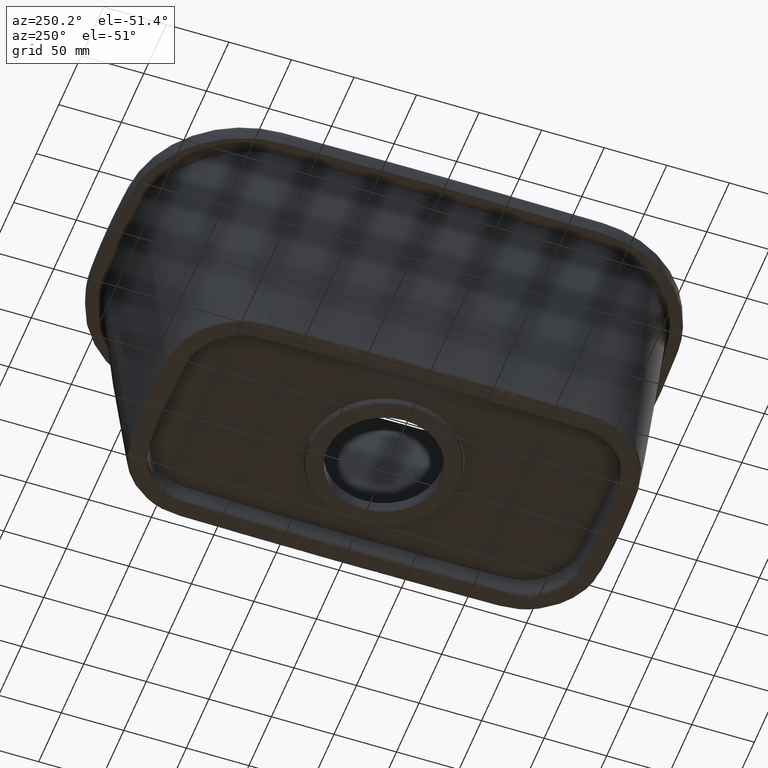
[diagram: clean part render]
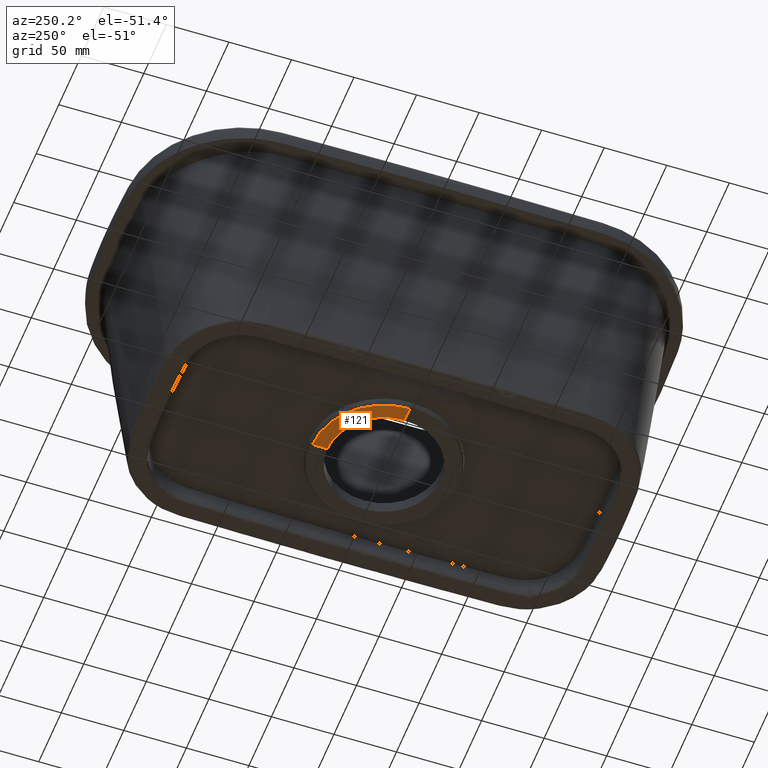
[diagram: same view with one face highlighted and labeled with its STEP entity id]
A machine part, auxiliary view. The second image highlights one B-rep face of the part: STEP entity #121.
In plain terms, the highlighted planar face has unit normal (0, 0, 1).
Its self-contained STEP definition (entity closure, byte-faithful):
#52=PLANE('',#1284);
#121=ADVANCED_FACE('',(#227),#52,.F.);
#227=FACE_OUTER_BOUND('',#307,.T.);
#307=EDGE_LOOP('',(#516,#517,#518,#519));
#377=LINE('',#65380,#387);
#378=LINE('',#65384,#388);
#387=VECTOR('',#1338,1.);
#388=VECTOR('',#1343,1.);
#402=CIRCLE('',#1274,57.305636931622);
#407=CIRCLE('',#1283,45.3567920678671);
#516=ORIENTED_EDGE('',*,*,#987,.F.);
#517=ORIENTED_EDGE('',*,*,#986,.T.);
#518=ORIENTED_EDGE('',*,*,#952,.T.);
#519=ORIENTED_EDGE('',*,*,#988,.F.);
#832=VERTEX_POINT('',#2135);
#834=VERTEX_POINT('',#2141);
#857=VERTEX_POINT('',#65378);
#858=VERTEX_POINT('',#65383);
#952=EDGE_CURVE('',#832,#834,#402,.T.);
#986=EDGE_CURVE('',#857,#832,#377,.T.);
#987=EDGE_CURVE('',#857,#858,#407,.T.);
#988=EDGE_CURVE('',#858,#834,#378,.T.);
#1274=AXIS2_PLACEMENT_3D('',#2142,#1321,#1322);
#1283=AXIS2_PLACEMENT_3D('',#65382,#1341,#1342);
#1284=AXIS2_PLACEMENT_3D('',#65385,#1344,#1345);
#1321=DIRECTION('',(0.,0.,-1.));
#1322=DIRECTION('',(-1.,0.,0.));
#1338=DIRECTION('',(-1.,0.,0.));
#1341=DIRECTION('',(0.,0.,-1.));
#1342=DIRECTION('',(1.,0.,0.));
#1343=DIRECTION('',(0.,1.,0.));
#1344=DIRECTION('',(0.,0.,1.));
#1345=DIRECTION('',(-1.,0.,0.));
#2135=CARTESIAN_POINT('',(-57.305636931622,0.,-20.0000000000001));
#2141=CARTESIAN_POINT('',(0.,57.305636931622,-20.0000000000001));
#2142=CARTESIAN_POINT('',(0.,0.,-20.0000000000001));
#65378=CARTESIAN_POINT('',(-45.3567920678671,0.,-20.0000000000001));
#65380=CARTESIAN_POINT('',(0.,0.,-20.0000000000001));
#65382=CARTESIAN_POINT('',(0.,0.,-20.0000000000001));
#65383=CARTESIAN_POINT('',(0.,45.3567920678671,-20.0000000000001));
#65384=CARTESIAN_POINT('',(0.,4.88498130835069E-15,-20.0000000000001));
#65385=CARTESIAN_POINT('',(0.,4.88498130835069E-15,-20.0000000000001));